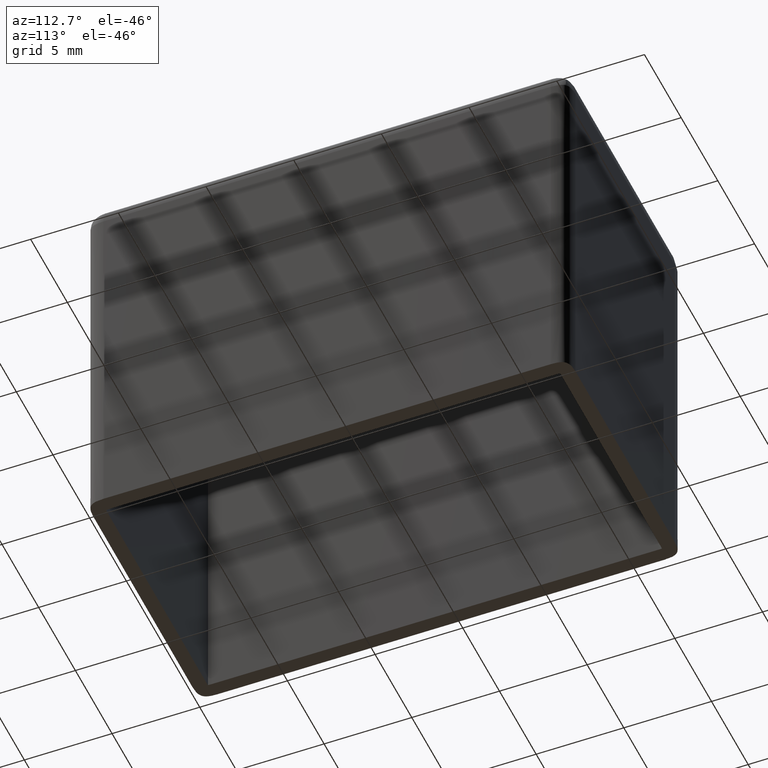
[diagram: clean part render]
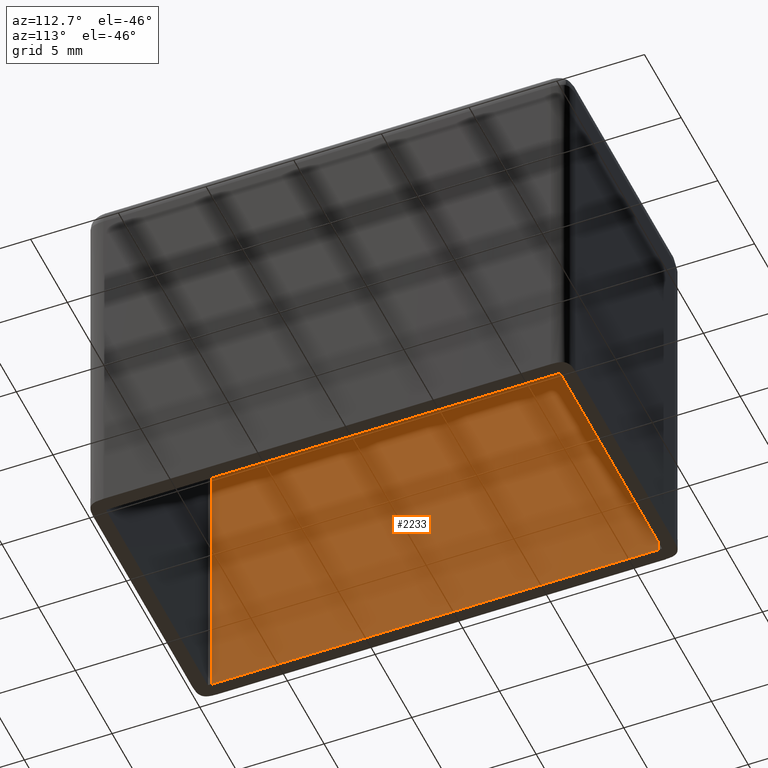
[diagram: same view with one face highlighted and labeled with its STEP entity id]
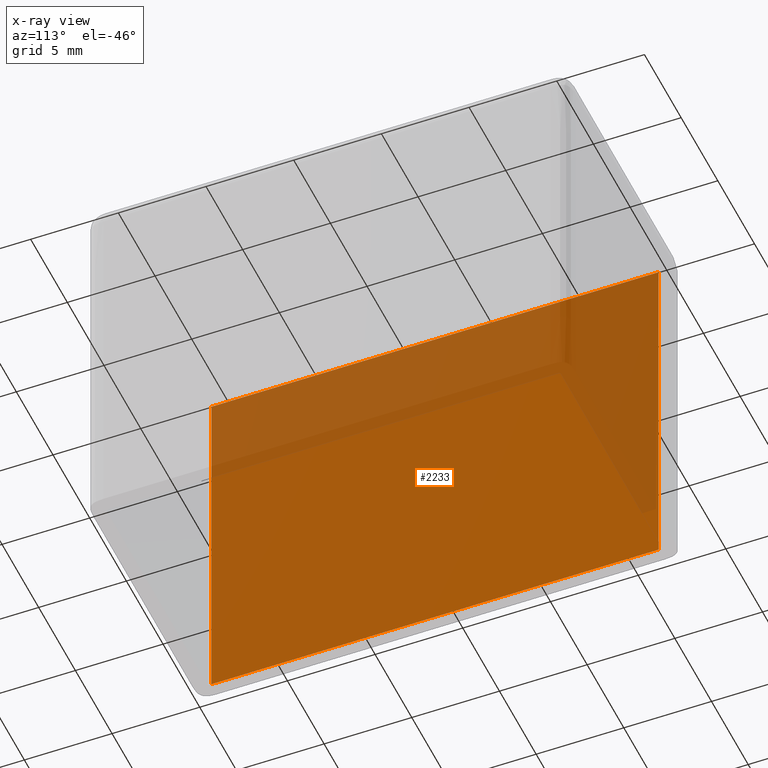
[diagram: x-ray of the same camera — body ghosted, the highlighted face saturated]
A machine part, auxiliary view. The second image highlights one B-rep face of the part: STEP entity #2233.
The next image is the same camera in x-ray: the body ghosted, the highlighted face saturated — about 33% of this face is hidden behind the body in this view.
In plain terms, the highlighted planar face has unit normal (-1, 0, 0).
Its self-contained STEP definition (entity closure, byte-faithful):
#55 = DIRECTION ( 'NONE',  ( 0.0000000000000000000, 0.0000000000000000000, 1.000000000000000000 ) ) ;
#228 = B_SPLINE_CURVE_WITH_KNOTS ( 'NONE', 3,
 ( #684, #3222, #2179, #1949 ),
 .UNSPECIFIED., .F., .F.,
 ( 4, 4 ),
 ( 0.0000000000000000000, 1.000000000000000000 ),
 .UNSPECIFIED. ) ;
#246 = CARTESIAN_POINT ( 'NONE',  ( 0.8000000000000009300, 26.50000000000000000, -8.000000000000001800 ) ) ;
#399 = VERTEX_POINT ( 'NONE', #2896 ) ;
#485 = ORIENTED_EDGE ( 'NONE', *, *, #2741, .F. ) ;
#684 = CARTESIAN_POINT ( 'NONE',  ( 0.8000000000000000400, 1.000000000000000000, -22.00000000000000000 ) ) ;
#699 = CARTESIAN_POINT ( 'NONE',  ( 0.8000000000000000400, 0.9999999999999952300, -1.000000000000000000 ) ) ;
#761 = ORIENTED_EDGE ( 'NONE', *, *, #1654, .T. ) ;
#842 = CARTESIAN_POINT ( 'NONE',  ( 0.8000000000000000400, 0.0000000000000000000, 0.0000000000000000000 ) ) ;
#845 = VERTEX_POINT ( 'NONE', #2932 ) ;
#855 = B_SPLINE_CURVE_WITH_KNOTS ( 'NONE', 3,
 ( #699, #957, #1452, #2700 ),
 .UNSPECIFIED., .F., .F.,
 ( 4, 4 ),
 ( 0.0000000000000000000, 1.000000000000000000 ),
 .UNSPECIFIED. ) ;
#957 = CARTESIAN_POINT ( 'NONE',  ( 0.8000000000000009300, 9.500000000000012400, -1.000000000000000000 ) ) ;
#1059 = PLANE ( 'NONE',  #2220 ) ;
#1254 = CARTESIAN_POINT ( 'NONE',  ( 0.8000000000000000400, 26.49999999999999600, -22.00000000000000000 ) ) ;
#1372 = FACE_OUTER_BOUND ( 'NONE', #1495, .T. ) ;
#1452 = CARTESIAN_POINT ( 'NONE',  ( 0.8000000000000009300, 17.99999999999999600, -0.9999999999999997800 ) ) ;
#1495 = EDGE_LOOP ( 'NONE', ( #761, #485, #2444, #2793 ) ) ;
#1545 = EDGE_CURVE ( 'NONE', #3250, #399, #228, .T. ) ;
#1569 = LINE ( 'NONE', #2029, #2503 ) ;
#1654 = EDGE_CURVE ( 'NONE', #3250, #1827, #1569, .T. ) ;
#1827 = VERTEX_POINT ( 'NONE', #1864 ) ;
#1841 = DIRECTION ( 'NONE',  ( -1.000000000000000000, 0.0000000000000000000, 0.0000000000000000000 ) ) ;
#1864 = CARTESIAN_POINT ( 'NONE',  ( 0.8000000000000000400, 26.49999999999999600, -22.00000000000000000 ) ) ;
#1949 = CARTESIAN_POINT ( 'NONE',  ( 0.8000000000000000400, 0.9999999999999952300, -1.000000000000000000 ) ) ;
#2029 = CARTESIAN_POINT ( 'NONE',  ( 0.8000000000000000400, 0.0000000000000000000, -22.00000000000000000 ) ) ;
#2054 = EDGE_CURVE ( 'NONE', #399, #845, #855, .T. ) ;
#2179 = CARTESIAN_POINT ( 'NONE',  ( 0.8000000000000008200, 1.000000000000000200, -7.999999999999994700 ) ) ;
#2196 = CARTESIAN_POINT ( 'NONE',  ( 0.8000000000000000400, 26.49999999999999600, -1.000000000000001300 ) ) ;
#2220 = AXIS2_PLACEMENT_3D ( 'NONE', #842, #1841, #55 ) ;
#2233 = ADVANCED_FACE ( 'NONE', ( #1372 ), #1059, .F. ) ;
#2321 = B_SPLINE_CURVE_WITH_KNOTS ( 'NONE', 3,
 ( #2196, #246, #2774, #1254 ),
 .UNSPECIFIED., .F., .F.,
 ( 4, 4 ),
 ( 0.0000000000000000000, 1.000000000000000000 ),
 .UNSPECIFIED. ) ;
#2444 = ORIENTED_EDGE ( 'NONE', *, *, #2054, .F. ) ;
#2499 = DIRECTION ( 'NONE',  ( 0.0000000000000000000, 1.000000000000000000, -0.0000000000000000000 ) ) ;
#2503 = VECTOR ( 'NONE', #2499, 1000.000000000000000 ) ;
#2700 = CARTESIAN_POINT ( 'NONE',  ( 0.8000000000000000400, 26.49999999999999600, -1.000000000000001300 ) ) ;
#2741 = EDGE_CURVE ( 'NONE', #845, #1827, #2321, .T. ) ;
#2774 = CARTESIAN_POINT ( 'NONE',  ( 0.8000000000000009300, 26.49999999999999600, -15.00000000000000200 ) ) ;
#2793 = ORIENTED_EDGE ( 'NONE', *, *, #1545, .F. ) ;
#2896 = CARTESIAN_POINT ( 'NONE',  ( 0.8000000000000000400, 0.9999999999999952300, -1.000000000000000000 ) ) ;
#2917 = CARTESIAN_POINT ( 'NONE',  ( 0.8000000000000000400, 1.000000000000000000, -22.00000000000000000 ) ) ;
#2932 = CARTESIAN_POINT ( 'NONE',  ( 0.8000000000000000400, 26.49999999999999600, -1.000000000000001300 ) ) ;
#3222 = CARTESIAN_POINT ( 'NONE',  ( 0.8000000000000009300, 1.000000000000000000, -15.00000000000002300 ) ) ;
#3250 = VERTEX_POINT ( 'NONE', #2917 ) ;